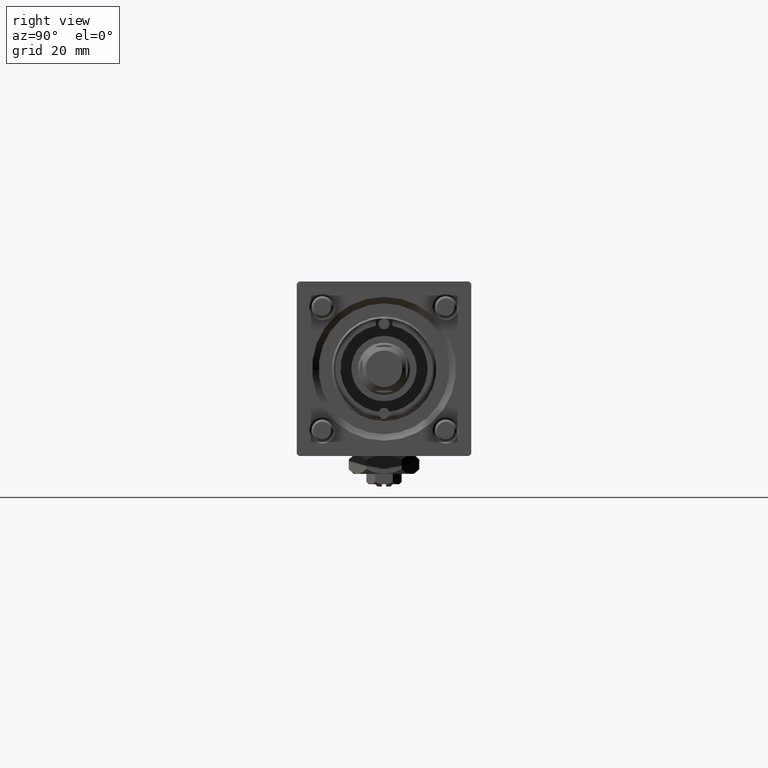
[diagram: clean part render]
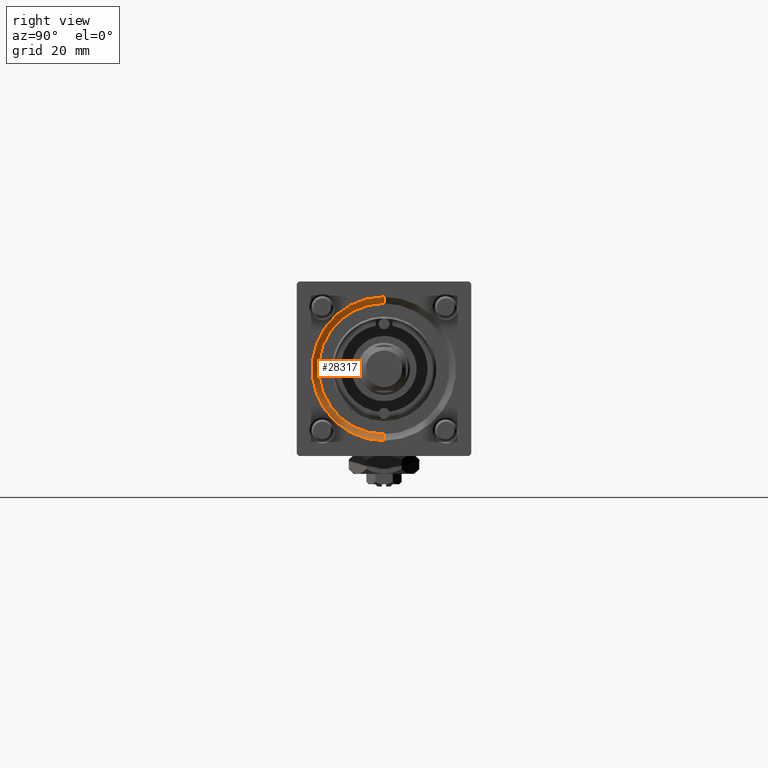
[diagram: same view with one face highlighted and labeled with its STEP entity id]
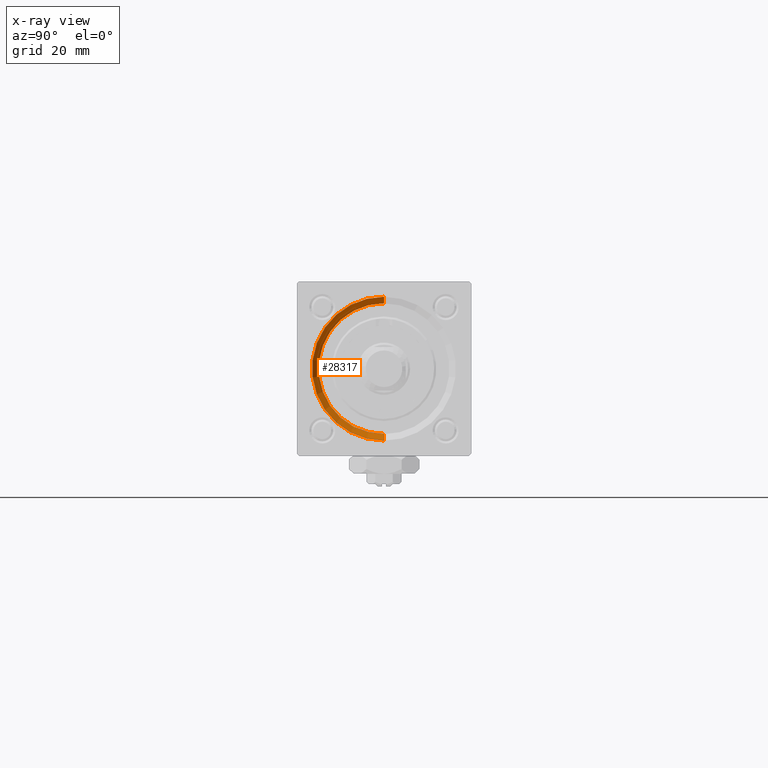
[diagram: x-ray of the same camera — body ghosted, the highlighted face saturated]
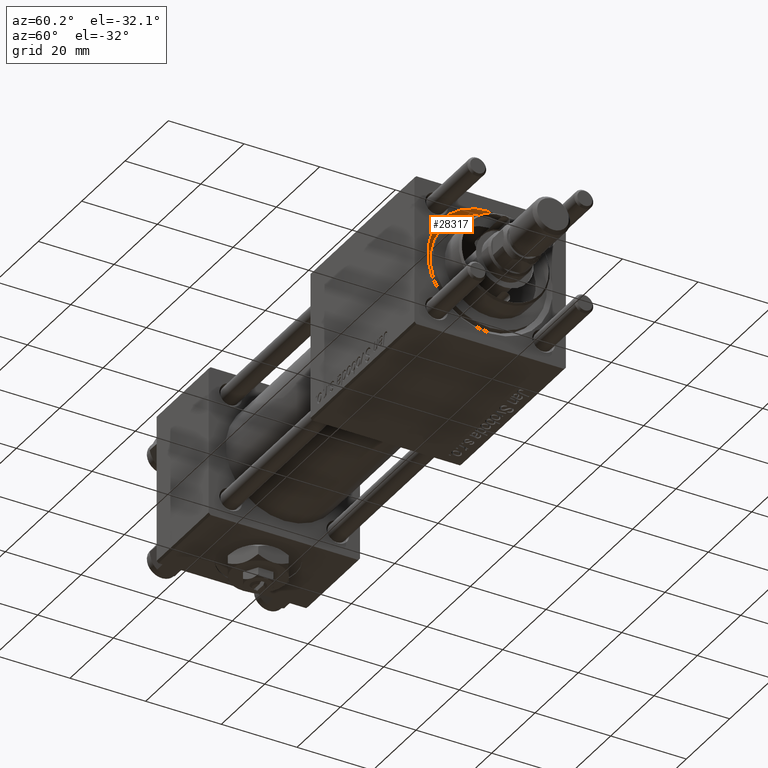
[diagram: same view with one face highlighted and labeled with its STEP entity id]
A machine part, right view. The second image highlights one B-rep face of the part: STEP entity #28317.
The next image is the same camera in x-ray: the body ghosted, the highlighted face saturated — about 0% of this face is hidden behind the body in this view.
A second angle (auxiliary view) of the same face is appended — the face is thin or edge-on in the first view.
In plain terms, the highlighted conical surface has half-angle 45 deg.
Its self-contained STEP definition (entity closure, byte-faithful):
#2733 = DIRECTION ( 'NONE',  ( 0.000000000000000000, 0.000000000000000000, -1.000000000000000000 ) ) ;
#6425 = CIRCLE ( 'NONE', #49328, 16.50000000000001421 ) ;
#7304 = CARTESIAN_POINT ( 'NONE',  ( 119.0000000000000142, 0.000000000000000000, 0.000000000000000000 ) ) ;
#7452 = LINE ( 'NONE', #38843, #57933 ) ;
#9758 = VERTEX_POINT ( 'NONE', #33321 ) ;
#11789 = EDGE_CURVE ( 'NONE', #39551, #50078, #6425, .T. ) ;
#12359 = EDGE_CURVE ( 'NONE', #9758, #50078, #7452, .T. ) ;
#13467 = AXIS2_PLACEMENT_3D ( 'NONE', #53246, #34724, #20966 ) ;
#14765 = CARTESIAN_POINT ( 'NONE',  ( 117.5000000000000000, 0.000000000000000000, 0.000000000000000000 ) ) ;
#15587 = CARTESIAN_POINT ( 'NONE',  ( 119.0000000000000142, 0.000000000000000000, -16.50000000000001421 ) ) ;
#18948 = DIRECTION ( 'NONE',  ( 1.000000000000000000, 0.000000000000000000, 0.000000000000000000 ) ) ;
#20966 = DIRECTION ( 'NONE',  ( 0.000000000000000000, 0.000000000000000000, 1.000000000000000000 ) ) ;
#21023 = DIRECTION ( 'NONE',  ( -1.000000000000000000, -0.000000000000000000, -0.000000000000000000 ) ) ;
#21285 = EDGE_LOOP ( 'NONE', ( #25100, #51043, #21797, #32310 ) ) ;
#21797 = ORIENTED_EDGE ( 'NONE', *, *, #11789, .F. ) ;
#23041 = VERTEX_POINT ( 'NONE', #38065 ) ;
#25100 = ORIENTED_EDGE ( 'NONE', *, *, #44379, .F. ) ;
#25843 = AXIS2_PLACEMENT_3D ( 'NONE', #14765, #18948, #2733 ) ;
#25879 = LINE ( 'NONE', #26764, #31515 ) ;
#26764 = CARTESIAN_POINT ( 'NONE',  ( 117.5000000000000000, 0.000000000000000000, -15.00000000000000000 ) ) ;
#26780 = CONICAL_SURFACE ( 'NONE', #25843, 15.00000000000000000, 0.7853981633974482790 ) ;
#26976 = EDGE_CURVE ( 'NONE', #23041, #39551, #25879, .T. ) ;
#28317 = ADVANCED_FACE ( 'NONE', ( #37489 ), #26780, .F. ) ;
#30579 = DIRECTION ( 'NONE',  ( 0.000000000000000000, 0.000000000000000000, 1.000000000000000000 ) ) ;
#30953 = DIRECTION ( 'NONE',  ( 0.7071067811865474617, 0.000000000000000000, -0.7071067811865474617 ) ) ;
#31515 = VECTOR ( 'NONE', #30953, 1000.000000000000114 ) ;
#32310 = ORIENTED_EDGE ( 'NONE', *, *, #26976, .F. ) ;
#33321 = CARTESIAN_POINT ( 'NONE',  ( 117.5000000000000000, 1.836970198721029589E-15, 15.00000000000000000 ) ) ;
#34724 = DIRECTION ( 'NONE',  ( 1.000000000000000000, 0.000000000000000000, 0.000000000000000000 ) ) ;
#35432 = CIRCLE ( 'NONE', #13467, 15.00000000000000000 ) ;
#37489 = FACE_OUTER_BOUND ( 'NONE', #21285, .T. ) ;
#38065 = CARTESIAN_POINT ( 'NONE',  ( 117.5000000000000000, 0.000000000000000000, -15.00000000000000000 ) ) ;
#38843 = CARTESIAN_POINT ( 'NONE',  ( 117.5000000000000000, 1.836970198721029589E-15, 15.00000000000000000 ) ) ;
#39551 = VERTEX_POINT ( 'NONE', #15587 ) ;
#43334 = DIRECTION ( 'NONE',  ( 0.7071067811865474617, 8.659560562354932858E-17, 0.7071067811865474617 ) ) ;
#44379 = EDGE_CURVE ( 'NONE', #9758, #23041, #35432, .T. ) ;
#48471 = CARTESIAN_POINT ( 'NONE',  ( 119.0000000000000142, 2.020667218593134678E-15, 16.50000000000001421 ) ) ;
#49328 = AXIS2_PLACEMENT_3D ( 'NONE', #7304, #21023, #30579 ) ;
#50078 = VERTEX_POINT ( 'NONE', #48471 ) ;
#51043 = ORIENTED_EDGE ( 'NONE', *, *, #12359, .T. ) ;
#53246 = CARTESIAN_POINT ( 'NONE',  ( 117.5000000000000000, 0.000000000000000000, 0.000000000000000000 ) ) ;
#57933 = VECTOR ( 'NONE', #43334, 1000.000000000000114 ) ;